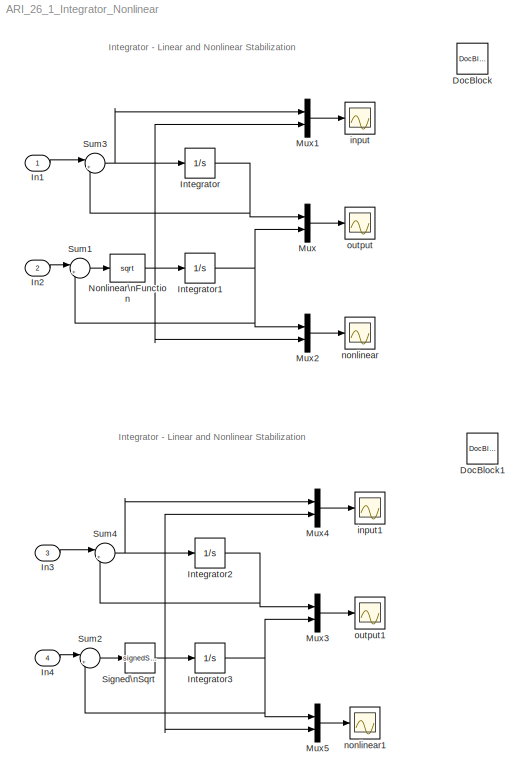
MODEL ARI_26_1_Integrator_Nonlinear
KIND model
BLOCK [Reference] DocBlock  REF=simulink/Model-Wide\nUtilities/DocBlock
  DocumentType = Text
  Ports = []
  SID = 3
  SourceBlock = simulink/Model-Wide\nUtilities/DocBlock
  SourceType = DocBlock
  UserData = DataTag0
  UserDataPersistent = on
BLOCK [Reference] DocBlock1  REF=simulink/Model-Wide\nUtilities/DocBlock
  DocumentType = Text
  Ports = []
  SID = 17
  SourceBlock = simulink/Model-Wide\nUtilities/DocBlock
  SourceType = DocBlock
  UserData = DataTag1
  UserDataPersistent = on
BLOCK [Inport] In1
  IconDisplay = Port number
  SID = 1
BLOCK [Inport] In2
  IconDisplay = Port number
  Port = 2
  SID = 2
BLOCK [Inport] In3
  IconDisplay = Port number
  Port = 3
  SID = 15
BLOCK [Inport] In4
  IconDisplay = Port number
  Port = 4
  SID = 16
BLOCK [Integrator] Integrator
  InitialCondition = 1
  Ports = [1, 1]
  SID = 4
BLOCK [Integrator] Integrator1
  InitialCondition = 1
  Ports = [1, 1]
  SID = 5
BLOCK [Integrator] Integrator2
  InitialCondition = 1
  Ports = [1, 1]
  SID = 18
BLOCK [Integrator] Integrator3
  InitialCondition = 1
  Ports = [1, 1]
  SID = 19
BLOCK [Mux] Mux
  DisplayOption = bar
  Inputs = 2
  Ports = [2, 1]
  SID = 6
BLOCK [Mux] Mux1
  DisplayOption = bar
  Inputs = 2
  Ports = [2, 1]
  SID = 7
BLOCK [Mux] Mux2
  DisplayOption = bar
  Inputs = 2
  Ports = [2, 1]
  SID = 8
BLOCK [Mux] Mux3
  DisplayOption = bar
  Inputs = 2
  Ports = [2, 1]
  SID = 20
BLOCK [Mux] Mux4
  DisplayOption = bar
  Inputs = 2
  Ports = [2, 1]
  SID = 21
BLOCK [Mux] Mux5
  DisplayOption = bar
  Inputs = 2
  Ports = [2, 1]
  SID = 22
BLOCK [Math] Nonlinear\nFunction
  Operator = sqrt
  OutputSignalType = real
  Ports = [1, 1]
  SID = 9
BLOCK [Sqrt] Signed\nSqrt
  Operator = signedSqrt
  SID = 29
BLOCK [Sum] Sum1
  IconShape = round
  InputSameDT = off
  Inputs = |+-
  OutDataTypeStr = Inherit: Inherit via internal rule
  Ports = [2, 1]
  SID = 10
  SaturateOnIntegerOverflow = off
BLOCK [Sum] Sum2
  IconShape = round
  InputSameDT = off
  Inputs = |+-
  OutDataTypeStr = Inherit: Inherit via internal rule
  Ports = [2, 1]
  SID = 24
  SaturateOnIntegerOverflow = off
BLOCK [Sum] Sum3
  IconShape = round
  InputSameDT = off
  Inputs = |+-
  OutDataTypeStr = Inherit: Inherit via internal rule
  Ports = [2, 1]
  SID = 11
  SaturateOnIntegerOverflow = off
BLOCK [Sum] Sum4
  IconShape = round
  InputSameDT = off
  Inputs = |+-
  OutDataTypeStr = Inherit: Inherit via internal rule
  Ports = [2, 1]
  SID = 25
  SaturateOnIntegerOverflow = off
BLOCK [Scope] input
  DataFormat = StructureWithTime
  Floating = off
  MaxDataPoints = 500000
  NumInputPorts = 1
  Ports = [1]
  SID = 12
  SampleTime = 0
  SaveName = ScopeData2
  YMax = 0.05
  YMin = -1
BLOCK [Scope] input1
  DataFormat = StructureWithTime
  Floating = off
  MaxDataPoints = 500000
  NumInputPorts = 1
  Ports = [1]
  SID = 26
  SampleTime = 0
  YMax = 0.05
  YMin = -1
BLOCK [Scope] nonlinear
  DataFormat = StructureWithTime
  Floating = off
  MaxDataPoints = 500000
  NumInputPorts = 1
  Ports = [1]
  SID = 13
  SampleTime = 0
  SaveName = ScopeData7
BLOCK [Scope] nonlinear1
  DataFormat = StructureWithTime
  Floating = off
  MaxDataPoints = 500000
  NumInputPorts = 1
  Ports = [1]
  SID = 27
  SampleTime = 0
  SaveName = ScopeData1
BLOCK [Scope] output
  DataFormat = StructureWithTime
  Floating = off
  NumInputPorts = 1
  Ports = [1]
  SID = 14
  SampleTime = 0
  SaveName = ScopeData3
  YMax = 0.01
  YMin = -8.67362e-019
BLOCK [Scope] output1
  DataFormat = StructureWithTime
  Floating = off
  NumInputPorts = 1
  Ports = [1]
  SID = 28
  SampleTime = 0
  SaveName = ScopeData4
  YMax = 0.01
  YMin = -8.67362e-019
ANNOTATION (root): Integrator - Linear and Nonlinear Stabilization
LINE In1:1 -> Sum3:1
LINE In2:1 -> Sum1:1
LINE In3:1 -> Sum4:1
LINE In4:1 -> Sum2:1
NET Integrator1:1 -> Mux2:1, Mux:2, Sum1:2
NET Integrator2:1 -> Mux3:1, Sum4:2
NET Integrator3:1 -> Mux3:2, Mux5:1, Sum2:2
NET Integrator:1 -> Mux:1, Sum3:2
LINE Mux1:1 -> input:1
LINE Mux2:1 -> nonlinear:1
LINE Mux3:1 -> output1:1
LINE Mux4:1 -> input1:1
LINE Mux5:1 -> nonlinear1:1
LINE Mux:1 -> output:1
NET Nonlinear\nFunction:1 -> Integrator1:1, Mux1:2, Mux2:2
NET Signed\nSqrt:1 -> Integrator3:1, Mux4:2, Mux5:2
LINE Sum1:1 -> Nonlinear\nFunction:1
LINE Sum2:1 -> Signed\nSqrt:1
NET Sum3:1 -> Integrator:1, Mux1:1
NET Sum4:1 -> Integrator2:1, Mux4:1
note: NET lines group one-source signal fan-out (src -> all destinations, sorted); 1:1 wires keep LINE
